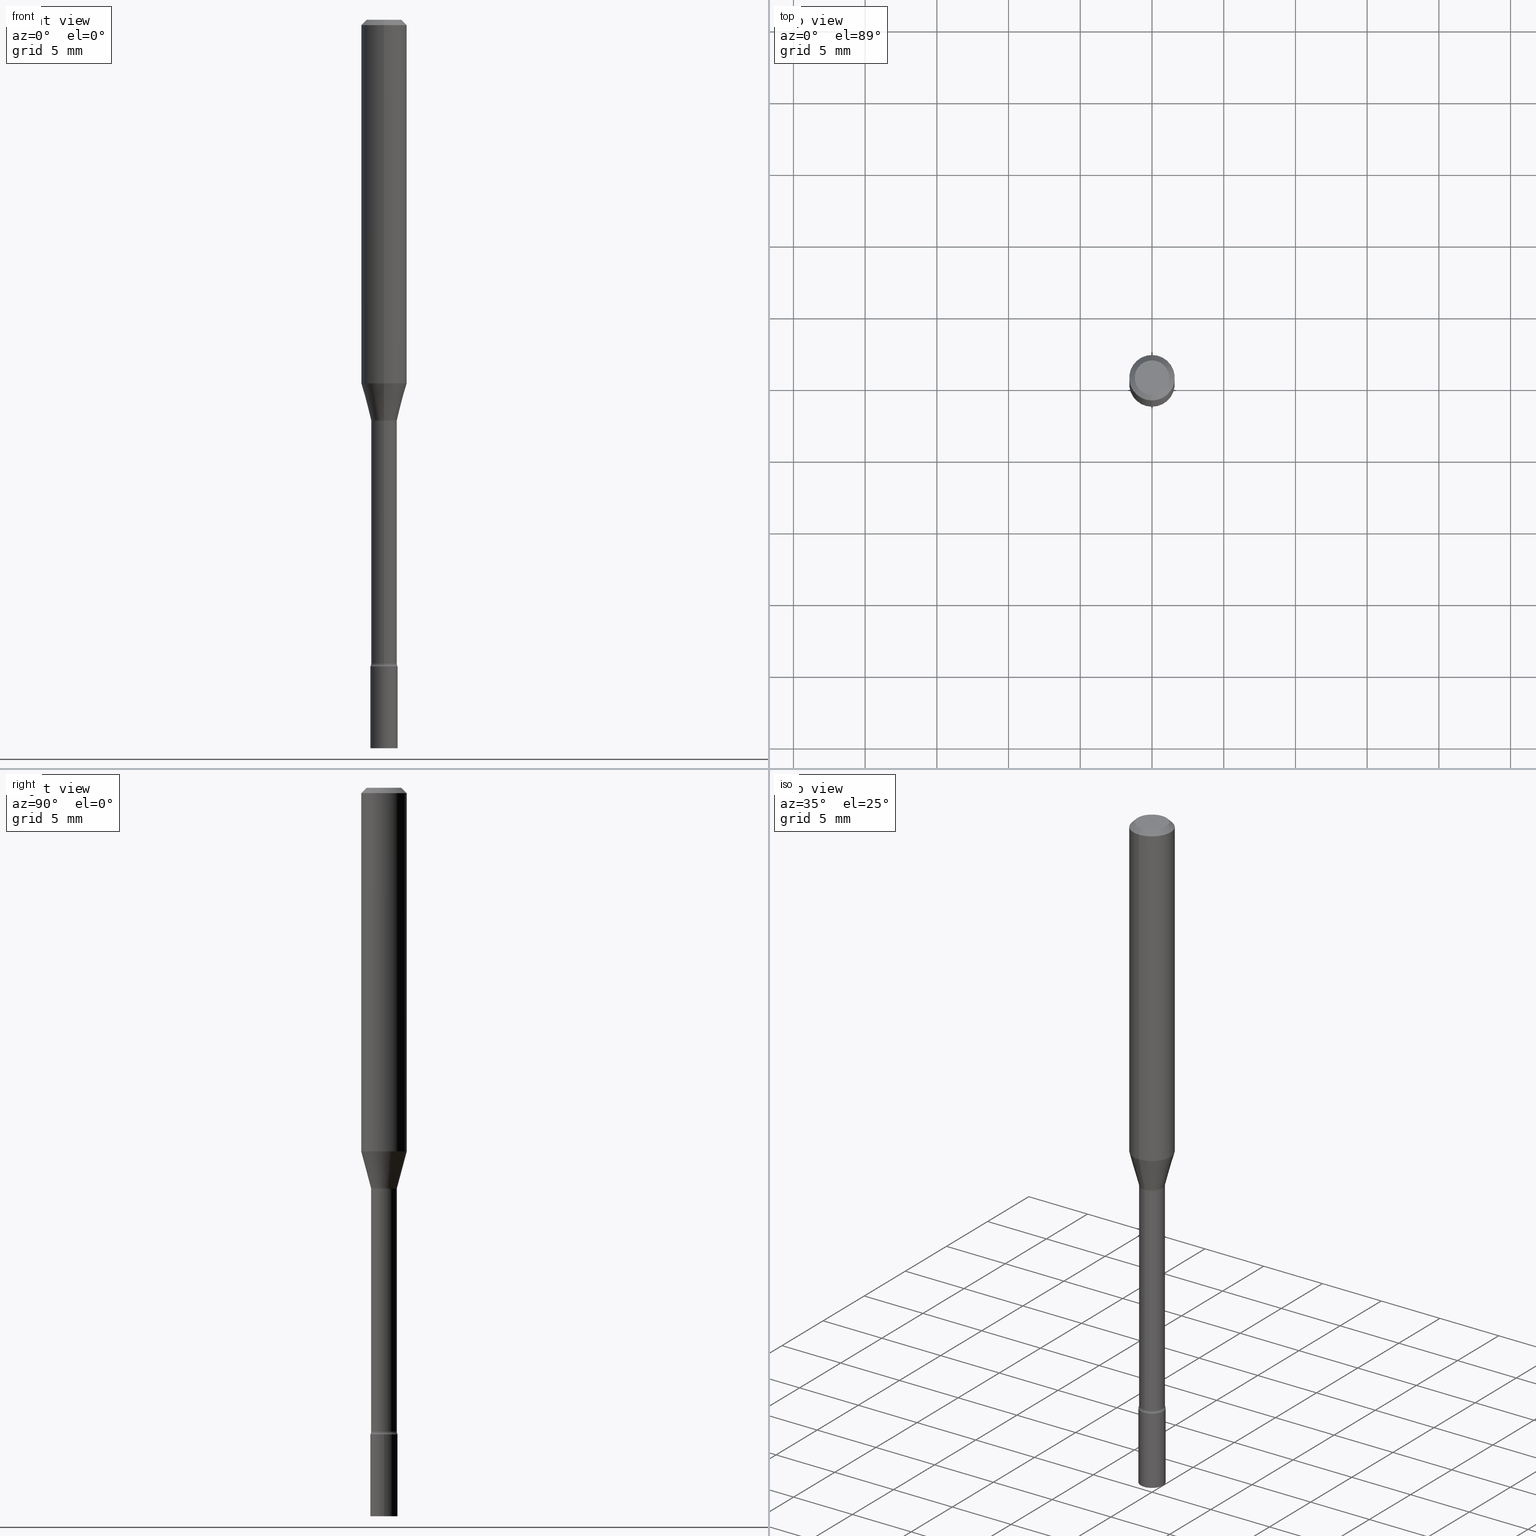
[diagram: canonical four-view strip — front | top / right | iso, engineering-drawing reading convention]
A machine part, canonical four-view strip (front | top / right | iso — engineering-drawing reading convention). The complete STEP part file that produces these views, byte-faithful:
ISO-10303-21;
HEADER;
FILE_DESCRIPTION (( 'STEP AP203' ),
    '1' );
FILE_NAME ('03443.STEP',
    '2024-03-08T21:22:56',
    ( '' ),
    ( '' ),
    'SwSTEP 2.0',
    'SolidWorks 2023',
    '' );
FILE_SCHEMA (( 'CONFIG_CONTROL_DESIGN' ));
ENDSEC;

DATA;
#1 = CARTESIAN_POINT ( 'NONE',  ( 0.000000000000000000, 0.000000000000000000, 0.000000000000000000 ) ) ;
#2 = VERTEX_POINT ( 'NONE', #124 ) ;
#3 = PERSON_AND_ORGANIZATION ( #152, #13 ) ;
#4 = CIRCLE ( 'NONE', #75, 0.03749999999999999861 ) ;
#5 = ORIENTED_EDGE ( 'NONE', *, *, #374, .F. ) ;
#6 = CARTESIAN_POINT ( 'NONE',  ( -0.03749999999999999861, -6.323717501156401251E-15, -2.000000000000000000 ) ) ;
#7 = EDGE_LOOP ( 'NONE', ( #282, #348, #294, #408 ) ) ;
#8 = EDGE_CURVE ( 'NONE', #363, #88, #218, .T. ) ;
#9 = DIRECTION ( 'NONE',  ( 1.000000000000000000, -6.982962677686268288E-15, 0.000000000000000000 ) ) ;
#10 = CARTESIAN_POINT ( 'NONE',  ( 2.694836430718442103E-29, -3.847536632100227789E-15, -1.101974787463810834 ) ) ;
#11 = LINE ( 'NONE', #97, #497 ) ;
#12 = CIRCLE ( 'NONE', #83, 0.06250000000000000000 ) ;
#13 = ORGANIZATION ( 'UNSPECIFIED', 'UNSPECIFIED', '' ) ;
#14 = PLANE ( 'NONE',  #217 ) ;
#15 = ADVANCED_FACE ( 'NONE', ( #134 ), #421, .T. ) ;
#16 = PERSON_AND_ORGANIZATION_ROLE ( 'classification_officer' ) ;
#17 = APPROVAL_ROLE ( '' ) ;
#18 = CARTESIAN_POINT ( 'NONE',  ( 3.570477247194940479E-16, 0.05024999999999391065, -1.767098259685361050 ) ) ;
#19 = CARTESIAN_POINT ( 'NONE',  ( -3.508938745537078699E-16, -0.05025000000000384714, -1.101974787463810834 ) ) ;
#20 = CARTESIAN_POINT ( 'NONE',  ( 4.321383671524591751E-29, -6.169790597593636121E-15, -1.767098259685360606 ) ) ;
#22 = AXIS2_PLACEMENT_3D ( 'NONE', #132, #173, #407 ) ;
#21 = APPROVAL_STATUS ( 'not_yet_approved' ) ;
#23 = CARTESIAN_POINT ( 'NONE',  ( 3.668191588467190461E-31, -5.237238649926811729E-17, -0.01500000000000003067 ) ) ;
#24 = EDGE_LOOP ( 'NONE', ( #394, #240, #112, #291 ) ) ;
#25 = DATE_AND_TIME ( #506, #462 ) ;
#26 = EDGE_CURVE ( 'NONE', #491, #438, #204, .T. ) ;
#27 = DIRECTION ( 'NONE',  ( -6.982962677686265922E-15, -1.000000000000000000, 3.483106191921935554E-15 ) ) ;
#28 = EDGE_CURVE ( 'NONE', #326, #428, #251, .T. ) ;
#29 = CARTESIAN_POINT ( 'NONE',  ( 4.890937612370273194E-29, -6.982962677686291165E-15, -2.000000000000000000 ) ) ;
#30 = ORIENTED_EDGE ( 'NONE', *, *, #281, .F. ) ;
#31 = PERSON_AND_ORGANIZATION ( #152, #13 ) ;
#32 = DIRECTION ( 'NONE',  ( -2.445461058978122069E-29, 3.491492433284533823E-15, 1.000000000000000000 ) ) ;
#33 = CIRCLE ( 'NONE', #304, 0.06250000000000000000 ) ;
#34 = CARTESIAN_POINT ( 'NONE',  ( 4.321369981448559219E-29, -6.169810202561705812E-15, -1.767098259685360606 ) ) ;
#35 = SECURITY_CLASSIFICATION ( '', '', #299 ) ;
#36 = DIRECTION ( 'NONE',  ( -6.982962677686265922E-15, -1.000000000000000000, 3.491492433284534218E-15 ) ) ;
#37 = ORIENTED_EDGE ( 'NONE', *, *, #26, .F. ) ;
#38 = FACE_OUTER_BOUND ( 'NONE', #24, .T. ) ;
#39 = EDGE_CURVE ( 'NONE', #51, #2, #411, .T. ) ;
#40 = DIRECTION ( 'NONE',  ( -2.445461058978122069E-29, 3.491492433284533823E-15, 1.000000000000000000 ) ) ;
#41 = DIRECTION ( 'NONE',  ( -6.982962677686265922E-15, -1.000000000000000000, 3.491492433284533823E-15 ) ) ;
#42 = VERTEX_POINT ( 'NONE', #162 ) ;
#43 = AXIS2_PLACEMENT_3D ( 'NONE', #308, #423, #473 ) ;
#44 = CIRCLE ( 'NONE', #437, 0.03576111260566397498 ) ;
#45 = ORIENTED_EDGE ( 'NONE', *, *, #272, .T. ) ;
#46 = CARTESIAN_POINT ( 'NONE',  ( -3.773273898774340269E-16, -0.04749999999999999362, 1.369325066391122786E-16 ) ) ;
#47 = ADVANCED_FACE ( 'NONE', ( #483 ), #283, .T. ) ;
#48 = VERTEX_POINT ( 'NONE', #404 ) ;
#49 = DIRECTION ( 'NONE',  ( -2.445461058978122069E-29, 3.491492433284533823E-15, 1.000000000000000000 ) ) ;
#50 = CC_DESIGN_PERSON_AND_ORGANIZATION_ASSIGNMENT ( #190, #344, ( #359 ) ) ;
#51 = VERTEX_POINT ( 'NONE', #207 ) ;
#52 = CARTESIAN_POINT ( 'NONE',  ( -4.287811248607203282E-16, -0.06250000000000005551, -0.01499999999999981209 ) ) ;
#53 = DIMENSIONAL_EXPONENTS ( 1.000000000000000000, 0.000000000000000000, 0.000000000000000000, 0.000000000000000000, 0.000000000000000000, 0.000000000000000000, 0.000000000000000000 ) ;
#54 = AXIS2_PLACEMENT_3D ( 'NONE', #336, #237, #502 ) ;
#55 = ORIENTED_EDGE ( 'NONE', *, *, #484, .F. ) ;
#56 = DIRECTION ( 'NONE',  ( -6.982962677686265133E-15, -1.000000000000000000, 3.819579138641765120E-15 ) ) ;
#57 = APPLICATION_PROTOCOL_DEFINITION ( 'international standard', 'config_control_design', 1994, #130 ) ;
#58 = CLOSED_SHELL ( 'NONE', ( #232, #368, #113, #47 ) ) ;
#59 = VECTOR ( 'NONE', #169, 39.37007874015748143 ) ;
#60 = EDGE_CURVE ( 'NONE', #48, #485, #195, .T. ) ;
#61 = COORDINATED_UNIVERSAL_TIME_OFFSET ( 5, 0, .BEHIND. ) ;
#62 = DIRECTION ( 'NONE',  ( 1.000000000000000000, -6.982962677686266711E-15, 4.876176775795935793E-29 ) ) ;
#63 = CYLINDRICAL_SURFACE ( 'NONE', #261, 0.03749999999999999861 ) ;
#64 = MANIFOLD_SOLID_BREP ( 'Body-Move/Copy2[2]', #259 ) ;
#65 = DIRECTION ( 'NONE',  ( 2.445461058978122069E-29, -3.491492433284533823E-15, -1.000000000000000000 ) ) ;
#67 = AXIS2_PLACEMENT_3D ( 'NONE', #384, #504, #271 ) ;
#66 = PERSON_AND_ORGANIZATION_ROLE ( 'creator' ) ;
#68 = CARTESIAN_POINT ( 'NONE',  ( 4.340693379686166357E-29, -6.197399069080048019E-15, -1.775000000000000133 ) ) ;
#69 = DIRECTION ( 'NONE',  ( 1.000000000000000000, -7.105427357601001070E-15, 4.926315644409803813E-29 ) ) ;
#70 = ORIENTED_EDGE ( 'NONE', *, *, #144, .T. ) ;
#71 = DIRECTION ( 'NONE',  ( -2.445468806185136597E-29, 3.491481338843145583E-15, 1.000000000000000000 ) ) ;
#72 = CARTESIAN_POINT ( 'NONE',  ( 2.540979878465616281E-16, 0.03576111260566013778, -1.098092501787273356 ) ) ;
#73 = DIRECTION ( 'NONE',  ( 6.982962677686265922E-15, 1.000000000000000000, -3.483106191921935554E-15 ) ) ;
#74 = EDGE_LOOP ( 'NONE', ( #414, #172, #360, #194 ) ) ;
#75 = AXIS2_PLACEMENT_3D ( 'NONE', #29, #234, #9 ) ;
#76 = DIRECTION ( 'NONE',  ( -2.445461058978122069E-29, 3.491492433284533823E-15, 1.000000000000000000 ) ) ;
#77 = AXIS2_PLACEMENT_3D ( 'NONE', #214, #369, #492 ) ;
#78 = DIRECTION ( 'NONE',  ( -2.445468806185136877E-29, 3.491481338843145188E-15, 1.000000000000000000 ) ) ;
#79 = DIRECTION ( 'NONE',  ( -2.445468806185136877E-29, 3.491481338843145188E-15, 1.000000000000000000 ) ) ;
#80 = ORIENTED_EDGE ( 'NONE', *, *, #317, .F. ) ;
#81 = ORIENTED_EDGE ( 'NONE', *, *, #153, .T. ) ;
#82 = EDGE_CURVE ( 'NONE', #197, #428, #323, .T. ) ;
#83 = AXIS2_PLACEMENT_3D ( 'NONE', #228, #193, #432 ) ;
#84 = CC_DESIGN_PERSON_AND_ORGANIZATION_ASSIGNMENT ( #416, #16, ( #35 ) ) ;
#85 = AXIS2_PLACEMENT_3D ( 'NONE', #10, #49, #253 ) ;
#86 = ORIENTED_EDGE ( 'NONE', *, *, #270, .T. ) ;
#87 = ADVANCED_FACE ( 'NONE', ( #350 ), #487, .T. ) ;
#88 = VERTEX_POINT ( 'NONE', #298 ) ;
#89 = CARTESIAN_POINT ( 'NONE',  ( 4.340707130978617347E-29, -6.197379376446583794E-15, -1.775000000000000133 ) ) ;
#90 = FACE_OUTER_BOUND ( 'NONE', #446, .T. ) ;
#91 = ORIENTED_EDGE ( 'NONE', *, *, #270, .F. ) ;
#92 = VECTOR ( 'NONE', #104, 39.37007874015748143 ) ;
#93 = APPROVAL ( #295, 'UNSPECIFIED' ) ;
#94 = DIRECTION ( 'NONE',  ( -2.445461058978122069E-29, 3.491492433284533823E-15, 1.000000000000000000 ) ) ;
#95 = UNCERTAINTY_MEASURE_WITH_UNIT (LENGTH_MEASURE( 1.000000000000000082E-05 ), #209, 'distance_accuracy_value', 'NONE');
#96 = APPROVAL_ROLE ( '' ) ;
#97 = CARTESIAN_POINT ( 'NONE',  ( -2.497185146378605472E-16, -0.03576111260566780525, -1.098092501787272912 ) ) ;
#98 = ORIENTED_EDGE ( 'NONE', *, *, #484, .T. ) ;
#99 = VECTOR ( 'NONE', #79, 39.37007874015748143 ) ;
#100 = CC_DESIGN_APPROVAL ( #93, ( #35 ) ) ;
#101 = DATE_AND_TIME ( #183, #509 ) ;
#102 = FACE_OUTER_BOUND ( 'NONE', #201, .T. ) ;
#103 = CARTESIAN_POINT ( 'NONE',  ( 7.070655451320730257E-46, -1.009508612538050995E-31, -2.891338394190306664E-17 ) ) ;
#104 = DIRECTION ( 'NONE',  ( -2.445461058978122069E-29, 3.491492433284533823E-15, 1.000000000000000000 ) ) ;
#105 = COORDINATED_UNIVERSAL_TIME_OFFSET ( 5, 0, .BEHIND. ) ;
#106 = FACE_OUTER_BOUND ( 'NONE', #168, .T. ) ;
#107 = CIRCLE ( 'NONE', #176, 0.03525000000000008682 ) ;
#108 = ORIENTED_EDGE ( 'NONE', *, *, #514, .F. ) ;
#110 = AXIS2_PLACEMENT_3D ( 'NONE', #415, #182, #468 ) ;
#109 = DATE_AND_TIME ( #263, #346 ) ;
#111 = FACE_OUTER_BOUND ( 'NONE', #131, .T. ) ;
#112 = ORIENTED_EDGE ( 'NONE', *, *, #391, .F. ) ;
#113 = ADVANCED_FACE ( 'NONE', ( #102 ), #63, .T. ) ;
#114 = LINE ( 'NONE', #72, #330 ) ;
#115 = DIRECTION ( 'NONE',  ( -2.445461058978122069E-29, 3.491492433284533823E-15, 1.000000000000000000 ) ) ;
#116 = ORIENTED_EDGE ( 'NONE', *, *, #213, .T. ) ;
#117 = EDGE_CURVE ( 'NONE', #485, #88, #33, .T. ) ;
#118 = DIRECTION ( 'NONE',  ( -2.445461058978122069E-29, 3.491492433284533823E-15, 1.000000000000000000 ) ) ;
#119 = AXIS2_PLACEMENT_3D ( 'NONE', #472, #380, #339 ) ;
#120 = EDGE_CURVE ( 'NONE', #51, #288, #343, .T. ) ;
#121 = ORIENTED_EDGE ( 'NONE', *, *, #82, .T. ) ;
#122 = CARTESIAN_POINT ( 'NONE',  ( 0.03749999999999999861, -2.618611004132350016E-16, 1.828566290923475922E-30 ) ) ;
#123 = ORIENTED_EDGE ( 'NONE', *, *, #39, .F. ) ;
#124 = CARTESIAN_POINT ( 'NONE',  ( -2.618611004131915157E-16, -0.03750000000000618811, -1.775000000000000133 ) ) ;
#125 = VECTOR ( 'NONE', #318, 39.37007874015748143 ) ;
#126 = CC_DESIGN_APPROVAL ( #146, ( #278 ) ) ;
#127 = DIRECTION ( 'NONE',  ( -1.000000000000000000, 6.982962677686265922E-15, -4.876176775795935793E-29 ) ) ;
#128 = ORIENTED_EDGE ( 'NONE', *, *, #153, .F. ) ;
#129 = DIRECTION ( 'NONE',  ( 2.445461058978121789E-29, -3.491492433284533823E-15, -1.000000000000000000 ) ) ;
#130 = APPLICATION_CONTEXT ( 'configuration controlled 3d designs of mechanical parts and assemblies' ) ;
#131 = EDGE_LOOP ( 'NONE', ( #158, #280, #258, #252 ) ) ;
#132 = CARTESIAN_POINT ( 'NONE',  ( 2.694836430718442103E-29, -3.847536632100227789E-15, -1.101974787463810834 ) ) ;
#133 = CARTESIAN_POINT ( 'NONE',  ( 4.364351673553919652E-16, 0.06249999999999995143, -0.01500000000000024751 ) ) ;
#134 = FACE_OUTER_BOUND ( 'NONE', #74, .T. ) ;
#135 = CARTESIAN_POINT ( 'NONE',  ( 3.316907271900976096E-16, 0.04749999999999999362, -1.803025825519668724E-16 ) ) ;
#136 = AXIS2_PLACEMENT_3D ( 'NONE', #68, #505, #475 ) ;
#137 =( GEOMETRIC_REPRESENTATION_CONTEXT ( 3 ) GLOBAL_UNCERTAINTY_ASSIGNED_CONTEXT ( ( #95 ) ) GLOBAL_UNIT_ASSIGNED_CONTEXT ( ( #209, #290, #449 ) ) REPRESENTATION_CONTEXT ( 'NONE', 'WORKASPACE' ) );
#138 = DIRECTION ( 'NONE',  ( 6.982962677686265922E-15, 1.000000000000000000, -3.491492433284533823E-15 ) ) ;
#139 = ADVANCED_FACE ( 'NONE', ( #378 ), #210, .F. ) ;
#140 = DIRECTION ( 'NONE',  ( -6.982962677686265133E-15, -1.000000000000000000, 3.819579138641765120E-15 ) ) ;
#141 = ORIENTED_EDGE ( 'NONE', *, *, #8, .T. ) ;
#142 = DIRECTION ( 'NONE',  ( 1.000000000000000000, -6.982962677686268288E-15, 0.000000000000000000 ) ) ;
#143 = COORDINATED_UNIVERSAL_TIME_OFFSET ( 5, 0, .BEHIND. ) ;
#144 = EDGE_CURVE ( 'NONE', #255, #363, #12, .T. ) ;
#145 = CARTESIAN_POINT ( 'NONE',  ( 0.000000000000000000, 0.000000000000000000, 0.000000000000000000 ) ) ;
#146 = APPROVAL ( #220, 'UNSPECIFIED' ) ;
#147 = CARTESIAN_POINT ( 'NONE',  ( 4.340693379686166357E-29, -6.197399069080048019E-15, -1.775000000000000133 ) ) ;
#148 = ORIENTED_EDGE ( 'NONE', *, *, #225, .T. ) ;
#149 = CARTESIAN_POINT ( 'NONE',  ( -2.461494343884138594E-16, -0.03525000000000384076, -1.101974787463810834 ) ) ;
#150 = CARTESIAN_POINT ( 'NONE',  ( 3.570477247194771860E-16, 0.05024999999999614497, -1.101974787463811056 ) ) ;
#151 = APPROVAL_DATE_TIME ( #109, #146 ) ;
#152 = PERSON ( 'UNSPECIFIED', 'UNSPECIFIED', 'UNSPECIFIED', ('UNSPECIFIED'), ('UNSPECIFIED'), ('UNSPECIFIED') ) ;
#153 = EDGE_CURVE ( 'NONE', #326, #448, #389, .T. ) ;
#154 = ORIENTED_EDGE ( 'NONE', *, *, #272, .F. ) ;
#155 = FACE_OUTER_BOUND ( 'NONE', #440, .T. ) ;
#156 = CC_DESIGN_DATE_AND_TIME_ASSIGNMENT ( #180, #377, ( #35 ) ) ;
#157 = CARTESIAN_POINT ( 'NONE',  ( 2.685342452276640404E-29, -3.833981661036747555E-15, -1.098092501787273134 ) ) ;
#158 = ORIENTED_EDGE ( 'NONE', *, *, #447, .F. ) ;
#159 = TOROIDAL_SURFACE ( 'NONE', #185, 0.05024999999999999606, 0.01499999999999999424 ) ;
#160 = DIRECTION ( 'NONE',  ( -6.982962677686266711E-15, -1.000000000000000000, 3.491492433284533823E-15 ) ) ;
#161 = CIRCLE ( 'NONE', #22, 0.03524999999999999661 ) ;
#162 = CARTESIAN_POINT ( 'NONE',  ( -2.497185146378605472E-16, -0.03576111260566780525, -1.098092501787272912 ) ) ;
#163 = ORIENTED_EDGE ( 'NONE', *, *, #60, .F. ) ;
#164 = DIRECTION ( 'NONE',  ( -6.982962677686266711E-15, -1.000000000000000000, 0.000000000000000000 ) ) ;
#165 = EDGE_LOOP ( 'NONE', ( #320, #154 ) ) ;
#166 = PRODUCT_DEFINITION_SHAPE ( 'NONE', 'NONE',  #359 ) ;
#167 = DIRECTION ( 'NONE',  ( -1.000000000000000000, 6.982962677686265922E-15, -4.883557194083112340E-29 ) ) ;
#168 = EDGE_LOOP ( 'NONE', ( #108, #121, #98, #5 ) ) ;
#170 = AXIS2_PLACEMENT_3D ( 'NONE', #23, #503, #73 ) ;
#169 = DIRECTION ( 'NONE',  ( -4.851104656540964275E-15, -0.7071067811865500152, -0.7071067811865450192 ) ) ;
#171 = EDGE_LOOP ( 'NONE', ( #513, #519 ) ) ;
#172 = ORIENTED_EDGE ( 'NONE', *, *, #28, .T. ) ;
#173 = DIRECTION ( 'NONE',  ( -2.445461058978122069E-29, 3.491492433284533823E-15, 1.000000000000000000 ) ) ;
#174 = FACE_OUTER_BOUND ( 'NONE', #7, .T. ) ;
#175 = ADVANCED_FACE ( 'NONE', ( #273 ), #277, .F. ) ;
#176 = AXIS2_PLACEMENT_3D ( 'NONE', #34, #118, #276 ) ;
#177 = CIRCLE ( 'NONE', #200, 0.01499999999999999424 ) ;
#178 = CARTESIAN_POINT ( 'NONE',  ( 0.03749999999999999861, -7.244823778099525378E-15, -2.000000000000000000 ) ) ;
#179 = CARTESIAN_POINT ( 'NONE',  ( 0.000000000000000000, 0.000000000000000000, 0.000000000000000000 ) ) ;
#180 = DATE_AND_TIME ( #500, #324 ) ;
#181 = DIRECTION ( 'NONE',  ( -1.807323732225328167E-15, -0.2588190451025179084, 0.9659258262890690894 ) ) ;
#182 = DIRECTION ( 'NONE',  ( -2.445461058978121789E-29, 3.491492433284533823E-15, 1.000000000000000000 ) ) ;
#183 = CALENDAR_DATE ( 2024, 8, 3 ) ;
#184 = DIRECTION ( 'NONE',  ( 7.105427357600997914E-15, 1.000000000000000000, 0.000000000000000000 ) ) ;
#185 = AXIS2_PLACEMENT_3D ( 'NONE', #267, #115, #36 ) ;
#186 = AXIS2_PLACEMENT_3D ( 'NONE', #260, #456, #457 ) ;
#187 = CARTESIAN_POINT ( 'NONE',  ( 3.668191588467190461E-31, -5.237238649926811729E-17, -0.01500000000000003067 ) ) ;
#188 = PERSON_AND_ORGANIZATION ( #152, #13 ) ;
#189 = ORIENTED_EDGE ( 'NONE', *, *, #334, .T. ) ;
#190 = PERSON_AND_ORGANIZATION ( #152, #13 ) ;
#191 = DIRECTION ( 'NONE',  ( -2.445461058978122069E-29, 3.491492433284533823E-15, 1.000000000000000000 ) ) ;
#192 = VECTOR ( 'NONE', #495, 39.37007874015748143 ) ;
#193 = DIRECTION ( 'NONE',  ( -2.445461058978122069E-29, 3.491492433284533823E-15, 1.000000000000000000 ) ) ;
#194 = ORIENTED_EDGE ( 'NONE', *, *, #120, .F. ) ;
#195 = LINE ( 'NONE', #133, #192 ) ;
#196 = ADVANCED_FACE ( 'NONE', ( #111 ), #436, .T. ) ;
#197 = VERTEX_POINT ( 'NONE', #470 ) ;
#198 = AXIS2_PLACEMENT_3D ( 'NONE', #425, #71, #142 ) ;
#199 = FACE_OUTER_BOUND ( 'NONE', #512, .T. ) ;
#200 = AXIS2_PLACEMENT_3D ( 'NONE', #19, #430, #164 ) ;
#201 = EDGE_LOOP ( 'NONE', ( #520, #148, #400, #362 ) ) ;
#202 = FACE_OUTER_BOUND ( 'NONE', #313, .T. ) ;
#203 = FACE_OUTER_BOUND ( 'NONE', #351, .T. ) ;
#204 = LINE ( 'NONE', #122, #99 ) ;
#205 = ORIENTED_EDGE ( 'NONE', *, *, #82, .F. ) ;
#206 = ADVANCED_FACE ( 'NONE', ( #106 ), #159, .F. ) ;
#207 = CARTESIAN_POINT ( 'NONE',  ( -2.461494343883982794E-16, -0.03525000000000625550, -1.767098259685360606 ) ) ;
#208 = EDGE_LOOP ( 'NONE', ( #128, #80, #403, #488 ) ) ;
#210 = TOROIDAL_SURFACE ( 'NONE', #296, 0.05024999999999999606, 0.01499999999999999424 ) ;
#209 =( CONVERSION_BASED_UNIT ( 'INCH', #329 ) LENGTH_UNIT ( ) NAMED_UNIT ( #53 ) );
#211 = PRODUCT_RELATED_PRODUCT_CATEGORY ( 'detail', '', ( #319 ) ) ;
#212 = CARTESIAN_POINT ( 'NONE',  ( 2.685342452276640404E-29, -3.833981661036747555E-15, -1.098092501787273134 ) ) ;
#213 = EDGE_CURVE ( 'NONE', #491, #459, #460, .T. ) ;
#214 = CARTESIAN_POINT ( 'NONE',  ( 0.000000000000000000, 0.000000000000000000, 0.000000000000000000 ) ) ;
#215 = CARTESIAN_POINT ( 'NONE',  ( 2.504663143554787774E-16, 0.03524999999999615247, -1.101974787463811056 ) ) ;
#216 = AXIS2_PLACEMENT_3D ( 'NONE', #265, #76, #27 ) ;
#217 = AXIS2_PLACEMENT_3D ( 'NONE', #135, #129, #138 ) ;
#218 = LINE ( 'NONE', #496, #479 ) ;
#219 = CARTESIAN_POINT ( 'NONE',  ( -0.03749999999999999861, -6.323717501156401251E-15, -1.775000000000000133 ) ) ;
#220 = APPROVAL_STATUS ( 'not_yet_approved' ) ;
#221 = DIRECTION ( 'NONE',  ( -2.445461058978122069E-29, 3.491492433284533823E-15, 1.000000000000000000 ) ) ;
#222 = DIRECTION ( 'NONE',  ( 1.000000000000000000, -7.105427357601001070E-15, 4.926315644409803813E-29 ) ) ;
#223 = AXIS2_PLACEMENT_3D ( 'NONE', #157, #431, #511 ) ;
#224 = CONICAL_SURFACE ( 'NONE', #331, 0.03576111260566397498, 0.2617993877991499629 ) ;
#225 = EDGE_CURVE ( 'NONE', #459, #491, #4, .T. ) ;
#226 = EDGE_CURVE ( 'NONE', #2, #448, #398, .T. ) ;
#227 = DATE_AND_TIME ( #422, #445 ) ;
#228 = CARTESIAN_POINT ( 'NONE',  ( 2.441307725804911996E-29, -3.485562536632148597E-15, -0.9983016154937482955 ) ) ;
#229 = DIRECTION ( 'NONE',  ( -2.445461058978122069E-29, 3.491492433284533823E-15, 1.000000000000000000 ) ) ;
#230 = MANIFOLD_SOLID_BREP ( 'Body-Move/Copy2[1]', #58 ) ;
#231 = APPROVAL_ROLE ( '' ) ;
#232 = ADVANCED_FACE ( 'NONE', ( #203 ), #493, .T. ) ;
#233 = EDGE_CURVE ( 'NONE', #42, #363, #11, .T. ) ;
#234 = DIRECTION ( 'NONE',  ( -2.445468806185136597E-29, 3.491481338843145583E-15, 1.000000000000000000 ) ) ;
#235 = CC_DESIGN_DATE_AND_TIME_ASSIGNMENT ( #101, #376, ( #359 ) ) ;
#236 = ORIENTED_EDGE ( 'NONE', *, *, #249, .T. ) ;
#237 = DIRECTION ( 'NONE',  ( -2.445461058978122069E-29, 3.491492433284533823E-15, 1.000000000000000000 ) ) ;
#238 = APPROVAL ( #21, 'UNSPECIFIED' ) ;
#239 = AXIS2_PLACEMENT_3D ( 'NONE', #402, #321, #127 ) ;
#240 = ORIENTED_EDGE ( 'NONE', *, *, #303, .T. ) ;
#241 = CARTESIAN_POINT ( 'NONE',  ( 2.584599201327800595E-16, 0.03524999999999392508, -1.767098259685360606 ) ) ;
#242 = DIRECTION ( 'NONE',  ( -2.445461058978122069E-29, 3.491492433284533823E-15, 1.000000000000000000 ) ) ;
#243 = ADVANCED_FACE ( 'NONE', ( #174 ), #454, .T. ) ;
#244 = ORIENTED_EDGE ( 'NONE', *, *, #281, .T. ) ;
#245 = ORIENTED_EDGE ( 'NONE', *, *, #489, .T. ) ;
#246 = ORIENTED_EDGE ( 'NONE', *, *, #28, .F. ) ;
#247 = CC_DESIGN_PERSON_AND_ORGANIZATION_ASSIGNMENT ( #3, #325, ( #319 ) ) ;
#248 = CIRCLE ( 'NONE', #443, 0.04749999999999999362 ) ;
#249 = EDGE_CURVE ( 'NONE', #326, #51, #268, .T. ) ;
#250 = DIRECTION ( 'NONE',  ( -2.445461058978122069E-29, 3.491492433284533823E-15, 1.000000000000000000 ) ) ;
#251 = LINE ( 'NONE', #444, #125 ) ;
#252 = ORIENTED_EDGE ( 'NONE', *, *, #117, .T. ) ;
#253 = DIRECTION ( 'NONE',  ( -6.982962677686265133E-15, -1.000000000000000000, 3.874961693140799059E-15 ) ) ;
#254 = ORIENTED_EDGE ( 'NONE', *, *, #450, .F. ) ;
#255 = VERTEX_POINT ( 'NONE', #465 ) ;
#256 = CARTESIAN_POINT ( 'NONE',  ( 7.070655451320730257E-46, -1.009508612538050995E-31, -2.891338394190306664E-17 ) ) ;
#257 = MECHANICAL_CONTEXT ( 'NONE', #130, 'mechanical' ) ;
#258 = ORIENTED_EDGE ( 'NONE', *, *, #60, .T. ) ;
#259 = CLOSED_SHELL ( 'NONE', ( #206, #15, #357, #87, #420, #332, #243, #397, #196, #466, #371, #175, #266, #139 ) ) ;
#260 = CARTESIAN_POINT ( 'NONE',  ( 4.340707130978617347E-29, -6.197379376446583794E-15, -1.775000000000000133 ) ) ;
#261 = AXIS2_PLACEMENT_3D ( 'NONE', #145, #464, #386 ) ;
#262 = DIRECTION ( 'NONE',  ( -2.445461058978122069E-29, 3.491492433284533823E-15, 1.000000000000000000 ) ) ;
#263 = CALENDAR_DATE ( 2024, 8, 3 ) ;
#264 = CARTESIAN_POINT ( 'NONE',  ( 3.668191588467190461E-31, -5.237238649926811729E-17, -0.01500000000000003067 ) ) ;
#265 = CARTESIAN_POINT ( 'NONE',  ( 3.668191588467190461E-31, -5.237238649926811729E-17, -0.01500000000000003067 ) ) ;
#266 = ADVANCED_FACE ( 'NONE', ( #508 ), #342, .T. ) ;
#267 = CARTESIAN_POINT ( 'NONE',  ( 2.694844967945245181E-29, -3.847524406305537036E-15, -1.101974787463810834 ) ) ;
#268 = CIRCLE ( 'NONE', #54, 0.03525000000000008682 ) ;
#269 = CIRCLE ( 'NONE', #379, 0.03576111260566397498 ) ;
#270 = EDGE_CURVE ( 'NONE', #396, #48, #248, .T. ) ;
#271 = DIRECTION ( 'NONE',  ( 1.000000000000000000, -6.982962677686265922E-15, 4.876176775795935793E-29 ) ) ;
#272 = EDGE_CURVE ( 'NONE', #448, #2, #354, .T. ) ;
#273 = FACE_OUTER_BOUND ( 'NONE', #208, .T. ) ;
#274 = ORIENTED_EDGE ( 'NONE', *, *, #427, .T. ) ;
#275 = DIRECTION ( 'NONE',  ( 6.982962677686265922E-15, 1.000000000000000000, -3.483106191921935554E-15 ) ) ;
#276 = DIRECTION ( 'NONE',  ( -6.982962677686266711E-15, -1.000000000000000000, 0.000000000000000000 ) ) ;
#277 = TOROIDAL_SURFACE ( 'NONE', #119, 0.05025000000000007933, 0.01499999999999999077 ) ;
#278 = PRODUCT_DEFINITION_FORMATION_WITH_SPECIFIED_SOURCE ( 'ANY', '', #319, .NOT_KNOWN. ) ;
#279 = LINE ( 'NONE', #439, #305 ) ;
#280 = ORIENTED_EDGE ( 'NONE', *, *, #334, .F. ) ;
#281 = EDGE_CURVE ( 'NONE', #88, #485, #424, .T. ) ;
#282 = ORIENTED_EDGE ( 'NONE', *, *, #303, .F. ) ;
#283 = PLANE ( 'NONE',  #239 ) ;
#284 = ORIENTED_EDGE ( 'NONE', *, *, #391, .T. ) ;
#285 = CIRCLE ( 'NONE', #399, 0.04749999999999999362 ) ;
#286 = APPROVAL_PERSON_ORGANIZATION ( #188, #146, #96 ) ;
#287 = ORIENTED_EDGE ( 'NONE', *, *, #447, .T. ) ;
#288 = VERTEX_POINT ( 'NONE', #149 ) ;
#289 = DIRECTION ( 'NONE',  ( -2.445461058978122069E-29, 3.491492433284533823E-15, 1.000000000000000000 ) ) ;
#290 =( NAMED_UNIT ( * ) PLANE_ANGLE_UNIT ( ) SI_UNIT ( $, .RADIAN. ) );
#291 = ORIENTED_EDGE ( 'NONE', *, *, #233, .F. ) ;
#292 = CARTESIAN_POINT ( 'NONE',  ( 0.000000000000000000, 0.000000000000000000, 0.000000000000000000 ) ) ;
#293 = CARTESIAN_POINT ( 'NONE',  ( 0.03749999999999999861, -6.459240476859818795E-15, -1.775000000000000133 ) ) ;
#294 = ORIENTED_EDGE ( 'NONE', *, *, #233, .T. ) ;
#295 = APPROVAL_STATUS ( 'not_yet_approved' ) ;
#296 = AXIS2_PLACEMENT_3D ( 'NONE', #340, #221, #302 ) ;
#297 = VECTOR ( 'NONE', #242, 39.37007874015748143 ) ;
#298 = CARTESIAN_POINT ( 'NONE',  ( -4.364351673553912750E-16, -0.06250000000000005551, -0.01499999999999981209 ) ) ;
#299 = SECURITY_CLASSIFICATION_LEVEL ( 'unclassified' ) ;
#300 = PLANE ( 'NONE',  #67 ) ;
#301 = PERSON_AND_ORGANIZATION ( #152, #13 ) ;
#302 = DIRECTION ( 'NONE',  ( -6.982962677686265922E-15, -1.000000000000000000, 3.491492433284534218E-15 ) ) ;
#303 = EDGE_CURVE ( 'NONE', #197, #255, #114, .T. ) ;
#304 = AXIS2_PLACEMENT_3D ( 'NONE', #264, #32, #474 ) ;
#305 = VECTOR ( 'NONE', #78, 39.37007874015748143 ) ;
#306 = CC_DESIGN_APPROVAL ( #238, ( #359 ) ) ;
#307 = PERSON_AND_ORGANIZATION_ROLE ( 'design_supplier' ) ;
#308 = CARTESIAN_POINT ( 'NONE',  ( 0.000000000000000000, 0.000000000000000000, 0.000000000000000000 ) ) ;
#309 = PLANE ( 'NONE',  #110 ) ;
#310 = DIRECTION ( 'NONE',  ( -6.982962677686266711E-15, -1.000000000000000000, 3.491492433284533823E-15 ) ) ;
#311 = AXIS2_PLACEMENT_3D ( 'NONE', #187, #65, #275 ) ;
#312 = APPROVAL_PERSON_ORGANIZATION ( #301, #238, #231 ) ;
#313 = EDGE_LOOP ( 'NONE', ( #481, #70, #141, #322 ) ) ;
#314 = EDGE_LOOP ( 'NONE', ( #205, #254, #482, #274 ) ) ;
#315 = CARTESIAN_POINT ( 'NONE',  ( -4.364351673553671654E-16, -0.06250000000000346945, -0.9983016154937480735 ) ) ;
#316 = CARTESIAN_POINT ( 'NONE',  ( 2.441307725804911996E-29, -3.485562536632148597E-15, -0.9983016154937482955 ) ) ;
#317 = EDGE_CURVE ( 'NONE', #51, #326, #107, .T. ) ;
#318 = DIRECTION ( 'NONE',  ( -2.445461058978122069E-29, 3.491492433284533823E-15, 1.000000000000000000 ) ) ;
#319 = PRODUCT ( '03443', '03443', '', ( #257 ) ) ;
#320 = ORIENTED_EDGE ( 'NONE', *, *, #226, .F. ) ;
#321 = DIRECTION ( 'NONE',  ( 2.438088387897960049E-29, -3.491481338843145188E-15, -1.000000000000000000 ) ) ;
#322 = ORIENTED_EDGE ( 'NONE', *, *, #117, .F. ) ;
#323 = CIRCLE ( 'NONE', #516, 0.01499999999999999424 ) ;
#324 = LOCAL_TIME ( 16, 22, 56.00000000000000000, #61 ) ;
#325 = PERSON_AND_ORGANIZATION_ROLE ( 'design_owner' ) ;
#326 = VERTEX_POINT ( 'NONE', #241 ) ;
#327 = ORIENTED_EDGE ( 'NONE', *, *, #8, .F. ) ;
#328 = CARTESIAN_POINT ( 'NONE',  ( 4.440892098500871695E-16, 0.06249999999999995837, -0.01500000000000024751 ) ) ;
#330 = VECTOR ( 'NONE', #387, 39.37007874015748854 ) ;
#329 = LENGTH_MEASURE_WITH_UNIT ( LENGTH_MEASURE( 0.02539999999999999897 ), #452 );
#331 = AXIS2_PLACEMENT_3D ( 'NONE', #419, #40, #515 ) ;
#332 = ADVANCED_FACE ( 'NONE', ( #38 ), #224, .T. ) ;
#333 = CARTESIAN_POINT ( 'NONE',  ( 2.664535259100808486E-16, 0.03749999999999379524, -1.775000000000000133 ) ) ;
#334 = EDGE_CURVE ( 'NONE', #48, #396, #285, .T. ) ;
#335 = APPROVAL_DATE_TIME ( #25, #93 ) ;
#336 = CARTESIAN_POINT ( 'NONE',  ( 4.321369981448559219E-29, -6.169810202561705812E-15, -1.767098259685360606 ) ) ;
#337 = AXIS2_PLACEMENT_3D ( 'NONE', #518, #167, #395 ) ;
#338 = CIRCLE ( 'NONE', #186, 0.03749999999999999861 ) ;
#339 = DIRECTION ( 'NONE',  ( -6.982962677686265922E-15, -1.000000000000000000, 3.491492433284533823E-15 ) ) ;
#340 = CARTESIAN_POINT ( 'NONE',  ( 2.694844967945245181E-29, -3.847524406305537036E-15, -1.101974787463810834 ) ) ;
#341 = PERSON_AND_ORGANIZATION ( #152, #13 ) ;
#342 = CYLINDRICAL_SURFACE ( 'NONE', #43, 0.03525000000000003825 ) ;
#343 = LINE ( 'NONE', #418, #92 ) ;
#344 = PERSON_AND_ORGANIZATION_ROLE ( 'creator' ) ;
#345 = AXIS2_PLACEMENT_3D ( 'NONE', #382, #191, #393 ) ;
#346 = LOCAL_TIME ( 16, 22, 56.00000000000000000, #385 ) ;
#347 = EDGE_CURVE ( 'NONE', #438, #367, #517, .T. ) ;
#348 = ORIENTED_EDGE ( 'NONE', *, *, #514, .T. ) ;
#349 = DIRECTION ( 'NONE',  ( -6.982962677686265922E-15, -1.000000000000000000, 3.491492433284533823E-15 ) ) ;
#350 = FACE_OUTER_BOUND ( 'NONE', #383, .T. ) ;
#351 = EDGE_LOOP ( 'NONE', ( #116, #442, #392, #37 ) ) ;
#352 = EDGE_LOOP ( 'NONE', ( #284, #358, #30, #327 ) ) ;
#353 = APPLICATION_CONTEXT ( 'configuration controlled 3d designs of mechanical parts and assemblies' ) ;
#354 = CIRCLE ( 'NONE', #136, 0.03749999999999999861 ) ;
#355 = AXIS2_PLACEMENT_3D ( 'NONE', #316, #250, #401 ) ;
#356 = ORIENTED_EDGE ( 'NONE', *, *, #249, .F. ) ;
#357 = ADVANCED_FACE ( 'NONE', ( #199 ), #365, .F. ) ;
#358 = ORIENTED_EDGE ( 'NONE', *, *, #410, .T. ) ;
#359 = PRODUCT_DEFINITION ( 'UNKNOWN', '', #278, #461 ) ;
#360 = ORIENTED_EDGE ( 'NONE', *, *, #427, .F. ) ;
#361 = DIRECTION ( 'NONE',  ( 1.000000000000000000, 0.000000000000000000, 0.000000000000000000 ) ) ;
#362 = ORIENTED_EDGE ( 'NONE', *, *, #489, .F. ) ;
#363 = VERTEX_POINT ( 'NONE', #315 ) ;
#364 = AXIS2_PLACEMENT_3D ( 'NONE', #147, #426, #441 ) ;
#365 = TOROIDAL_SURFACE ( 'NONE', #501, 0.05025000000000007933, 0.01499999999999999077 ) ;
#366 = LINE ( 'NONE', #52, #59 ) ;
#367 = VERTEX_POINT ( 'NONE', #219 ) ;
#368 = ADVANCED_FACE ( 'NONE', ( #155 ), #300, .T. ) ;
#369 = DIRECTION ( 'NONE',  ( -2.445461058978122069E-29, 3.491492433284533823E-15, 1.000000000000000000 ) ) ;
#370 = FACE_OUTER_BOUND ( 'NONE', #352, .T. ) ;
#371 = ADVANCED_FACE ( 'NONE', ( #510 ), #309, .F. ) ;
#372 = AXIS2_PLACEMENT_3D ( 'NONE', #179, #453, #62 ) ;
#373 = AXIS2_PLACEMENT_3D ( 'NONE', #292, #458, #361 ) ;
#374 = EDGE_CURVE ( 'NONE', #42, #288, #177, .T. ) ;
#375 = CC_DESIGN_PERSON_AND_ORGANIZATION_ASSIGNMENT ( #429, #66, ( #278 ) ) ;
#376 = DATE_TIME_ROLE ( 'creation_date' ) ;
#377 = DATE_TIME_ROLE ( 'classification_date' ) ;
#378 = FACE_OUTER_BOUND ( 'NONE', #314, .T. ) ;
#379 = AXIS2_PLACEMENT_3D ( 'NONE', #212, #409, #140 ) ;
#380 = DIRECTION ( 'NONE',  ( -2.445461058978122069E-29, 3.491492433284533823E-15, 1.000000000000000000 ) ) ;
#381 = DIRECTION ( 'NONE',  ( 7.105427357601001859E-15, 1.000000000000000000, 0.000000000000000000 ) ) ;
#382 = CARTESIAN_POINT ( 'NONE',  ( 0.000000000000000000, 0.000000000000000000, 0.000000000000000000 ) ) ;
#383 = EDGE_LOOP ( 'NONE', ( #91, #287, #244, #163 ) ) ;
#384 = CARTESIAN_POINT ( 'NONE',  ( 4.340707130978617347E-29, -6.197379376446583794E-15, -1.775000000000000133 ) ) ;
#385 = COORDINATED_UNIVERSAL_TIME_OFFSET ( 5, 0, .BEHIND. ) ;
#386 = DIRECTION ( 'NONE',  ( 1.000000000000000000, -6.982962677686266711E-15, 4.876176775795935793E-29 ) ) ;
#387 = DIRECTION ( 'NONE',  ( 1.839019923739597949E-15, 0.2588190451025246253, 0.9659258262890670910 ) ) ;
#388 = LINE ( 'NONE', #476, #297 ) ;
#389 = CIRCLE ( 'NONE', #507, 0.01499999999999999424 ) ;
#390 = CIRCLE ( 'NONE', #355, 0.06250000000000000000 ) ;
#391 = EDGE_CURVE ( 'NONE', #363, #255, #390, .T. ) ;
#392 = ORIENTED_EDGE ( 'NONE', *, *, #347, .F. ) ;
#393 = DIRECTION ( 'NONE',  ( -6.982962677686266711E-15, -1.000000000000000000, 3.491492433284533823E-15 ) ) ;
#394 = ORIENTED_EDGE ( 'NONE', *, *, #450, .T. ) ;
#395 = DIRECTION ( 'NONE',  ( -6.982962677686262766E-15, -1.000000000000000000, 0.000000000000000000 ) ) ;
#396 = VERTEX_POINT ( 'NONE', #46 ) ;
#397 = ADVANCED_FACE ( 'NONE', ( #202 ), #478, .T. ) ;
#398 = CIRCLE ( 'NONE', #364, 0.03749999999999999861 ) ;
#399 = AXIS2_PLACEMENT_3D ( 'NONE', #256, #289, #160 ) ;
#400 = ORIENTED_EDGE ( 'NONE', *, *, #26, .T. ) ;
#401 = DIRECTION ( 'NONE',  ( -6.982962677686265922E-15, -1.000000000000000000, 4.370956789862821150E-15 ) ) ;
#402 = CARTESIAN_POINT ( 'NONE',  ( 2.618611004132838617E-16, 0.03749999999999301115, -2.000000000000000000 ) ) ;
#403 = ORIENTED_EDGE ( 'NONE', *, *, #39, .T. ) ;
#404 = CARTESIAN_POINT ( 'NONE',  ( 3.840629472727447874E-16, 0.04749999999999999362, -1.947592745229184119E-16 ) ) ;
#405 = ORIENTED_EDGE ( 'NONE', *, *, #347, .T. ) ;
#406 = DIRECTION ( 'NONE',  ( -2.445468806185136597E-29, 3.491481338843145583E-15, 1.000000000000000000 ) ) ;
#407 = DIRECTION ( 'NONE',  ( -6.982962677686265133E-15, -1.000000000000000000, 3.874961693140799059E-15 ) ) ;
#408 = ORIENTED_EDGE ( 'NONE', *, *, #144, .F. ) ;
#409 = DIRECTION ( 'NONE',  ( -2.445461058978122069E-29, 3.491492433284533823E-15, 1.000000000000000000 ) ) ;
#410 = EDGE_CURVE ( 'NONE', #255, #485, #388, .T. ) ;
#411 = CIRCLE ( 'NONE', #337, 0.01499999999999999424 ) ;
#413 = AXIS2_PLACEMENT_3D ( 'NONE', #89, #406, #477 ) ;
#412 = SHAPE_DEFINITION_REPRESENTATION ( #166, #433 ) ;
#414 = ORIENTED_EDGE ( 'NONE', *, *, #317, .T. ) ;
#415 = CARTESIAN_POINT ( 'NONE',  ( 2.618611004132783890E-16, 0.03749999999999380218, -1.775000000000000133 ) ) ;
#416 = PERSON_AND_ORGANIZATION ( #152, #13 ) ;
#417 = EDGE_CURVE ( 'NONE', #459, #367, #279, .T. ) ;
#418 = CARTESIAN_POINT ( 'NONE',  ( -2.461494343884411737E-16, -0.03525000000000003825, 1.230751082732799542E-16 ) ) ;
#419 = CARTESIAN_POINT ( 'NONE',  ( 2.685342452276640404E-29, -3.833981661036747555E-15, -1.098092501787273134 ) ) ;
#420 = ADVANCED_FACE ( 'NONE', ( #370 ), #490, .T. ) ;
#421 = CYLINDRICAL_SURFACE ( 'NONE', #345, 0.03525000000000003825 ) ;
#422 = CALENDAR_DATE ( 2024, 8, 3 ) ;
#423 = DIRECTION ( 'NONE',  ( -2.445461058978122069E-29, 3.491492433284533823E-15, 1.000000000000000000 ) ) ;
#424 = CIRCLE ( 'NONE', #216, 0.06250000000000000000 ) ;
#425 = CARTESIAN_POINT ( 'NONE',  ( 4.890937612370273194E-29, -6.982962677686291165E-15, -2.000000000000000000 ) ) ;
#426 = DIRECTION ( 'NONE',  ( -2.445461058978122069E-29, 3.491492433284533823E-15, 1.000000000000000000 ) ) ;
#427 = EDGE_CURVE ( 'NONE', #288, #428, #498, .T. ) ;
#428 = VERTEX_POINT ( 'NONE', #215 ) ;
#429 = PERSON_AND_ORGANIZATION ( #152, #13 ) ;
#430 = DIRECTION ( 'NONE',  ( -1.000000000000000000, 6.982962677686265922E-15, -4.883557194083112340E-29 ) ) ;
#431 = DIRECTION ( 'NONE',  ( -2.445461058978122069E-29, 3.491492433284533823E-15, 1.000000000000000000 ) ) ;
#432 = DIRECTION ( 'NONE',  ( -6.982962677686265922E-15, -1.000000000000000000, 4.370956789862821150E-15 ) ) ;
#433 = ADVANCED_BREP_SHAPE_REPRESENTATION ( '03443', ( #230, #64, #373 ), #137 ) ;
#434 = EDGE_LOOP ( 'NONE', ( #246, #236, #451, #55 ) ) ;
#435 = DIRECTION ( 'NONE',  ( -2.445461058978122069E-29, 3.491492433284533823E-15, 1.000000000000000000 ) ) ;
#436 = CONICAL_SURFACE ( 'NONE', #170, 0.06250000000000000000, 0.7853981633974483900 ) ;
#437 = AXIS2_PLACEMENT_3D ( 'NONE', #499, #94, #56 ) ;
#438 = VERTEX_POINT ( 'NONE', #293 ) ;
#439 = CARTESIAN_POINT ( 'NONE',  ( -0.03749999999999999861, 2.664535259100375598E-16, -1.844600658845589458E-30 ) ) ;
#440 = EDGE_LOOP ( 'NONE', ( #405, #245 ) ) ;
#441 = DIRECTION ( 'NONE',  ( -6.982962677686265922E-15, -1.000000000000000000, 0.000000000000000000 ) ) ;
#442 = ORIENTED_EDGE ( 'NONE', *, *, #417, .T. ) ;
#443 = AXIS2_PLACEMENT_3D ( 'NONE', #103, #435, #310 ) ;
#444 = CARTESIAN_POINT ( 'NONE',  ( 2.504663143554355873E-16, 0.03525000000000003825, -1.230751082732799542E-16 ) ) ;
#445 = LOCAL_TIME ( 16, 22, 56.00000000000000000, #469 ) ;
#446 = EDGE_LOOP ( 'NONE', ( #189, #86 ) ) ;
#447 = EDGE_CURVE ( 'NONE', #396, #88, #366, .T. ) ;
#448 = VERTEX_POINT ( 'NONE', #333 ) ;
#449 =( NAMED_UNIT ( * ) SI_UNIT ( $, .STERADIAN. ) SOLID_ANGLE_UNIT ( ) );
#450 = EDGE_CURVE ( 'NONE', #42, #197, #269, .T. ) ;
#451 = ORIENTED_EDGE ( 'NONE', *, *, #120, .T. ) ;
#452 =( LENGTH_UNIT ( ) NAMED_UNIT ( * ) SI_UNIT ( $, .METRE. ) );
#453 = DIRECTION ( 'NONE',  ( -2.445468806185136597E-29, 3.491481338843145583E-15, 1.000000000000000000 ) ) ;
#454 = CONICAL_SURFACE ( 'NONE', #223, 0.03576111260566397498, 0.2617993877991499629 ) ;
#455 = APPROVAL_PERSON_ORGANIZATION ( #341, #93, #17 ) ;
#456 = DIRECTION ( 'NONE',  ( -2.445468806185136597E-29, 3.491481338843145583E-15, 1.000000000000000000 ) ) ;
#457 = DIRECTION ( 'NONE',  ( 1.000000000000000000, -6.982962677686268288E-15, 0.000000000000000000 ) ) ;
#458 = DIRECTION ( 'NONE',  ( 0.000000000000000000, 0.000000000000000000, 1.000000000000000000 ) ) ;
#459 = VERTEX_POINT ( 'NONE', #6 ) ;
#460 = CIRCLE ( 'NONE', #198, 0.03749999999999999861 ) ;
#461 = DESIGN_CONTEXT ( 'detailed design', #353, 'design' ) ;
#463 = APPROVAL_DATE_TIME ( #227, #238 ) ;
#462 = LOCAL_TIME ( 16, 22, 56.00000000000000000, #105 ) ;
#464 = DIRECTION ( 'NONE',  ( -2.445468806185136597E-29, 3.491481338843145583E-15, 1.000000000000000000 ) ) ;
#465 = CARTESIAN_POINT ( 'NONE',  ( 4.440892098500869722E-16, 0.06249999999999652361, -0.9983016154937485176 ) ) ;
#466 = ADVANCED_FACE ( 'NONE', ( #90 ), #14, .F. ) ;
#467 = CC_DESIGN_PERSON_AND_ORGANIZATION_ASSIGNMENT ( #31, #307, ( #278 ) ) ;
#468 = DIRECTION ( 'NONE',  ( -6.982962677686265922E-15, -1.000000000000000000, 3.491492433284533823E-15 ) ) ;
#469 = COORDINATED_UNIVERSAL_TIME_OFFSET ( 5, 0, .BEHIND. ) ;
#470 = CARTESIAN_POINT ( 'NONE',  ( 3.490935988483243741E-16, 0.03576111260566013778, -1.098092501787273356 ) ) ;
#471 = AXIS2_PLACEMENT_3D ( 'NONE', #1, #486, #41 ) ;
#472 = CARTESIAN_POINT ( 'NONE',  ( 4.321383671524591751E-29, -6.169790597593636121E-15, -1.767098259685360606 ) ) ;
#473 = DIRECTION ( 'NONE',  ( -6.982962677686266711E-15, -1.000000000000000000, 3.491492433284533823E-15 ) ) ;
#474 = DIRECTION ( 'NONE',  ( -6.982962677686265922E-15, -1.000000000000000000, 3.483106191921935554E-15 ) ) ;
#475 = DIRECTION ( 'NONE',  ( -6.982962677686265922E-15, -1.000000000000000000, 0.000000000000000000 ) ) ;
#476 = CARTESIAN_POINT ( 'NONE',  ( 4.440892098500625669E-16, 0.06250000000000000000, -2.182182770802833639E-16 ) ) ;
#477 = DIRECTION ( 'NONE',  ( 1.000000000000000000, -6.982962677686268288E-15, 0.000000000000000000 ) ) ;
#478 = CYLINDRICAL_SURFACE ( 'NONE', #471, 0.06250000000000000000 ) ;
#479 = VECTOR ( 'NONE', #262, 39.37007874015748143 ) ;
#480 = CC_DESIGN_SECURITY_CLASSIFICATION ( #35, ( #278 ) ) ;
#481 = ORIENTED_EDGE ( 'NONE', *, *, #410, .F. ) ;
#482 = ORIENTED_EDGE ( 'NONE', *, *, #374, .T. ) ;
#483 = FACE_OUTER_BOUND ( 'NONE', #171, .T. ) ;
#484 = EDGE_CURVE ( 'NONE', #428, #288, #161, .T. ) ;
#485 = VERTEX_POINT ( 'NONE', #328 ) ;
#486 = DIRECTION ( 'NONE',  ( -2.445461058978122069E-29, 3.491492433284533823E-15, 1.000000000000000000 ) ) ;
#487 = CONICAL_SURFACE ( 'NONE', #311, 0.06250000000000000000, 0.7853981633974483900 ) ;
#488 = ORIENTED_EDGE ( 'NONE', *, *, #226, .T. ) ;
#489 = EDGE_CURVE ( 'NONE', #367, #438, #338, .T. ) ;
#490 = CYLINDRICAL_SURFACE ( 'NONE', #77, 0.06250000000000000000 ) ;
#491 = VERTEX_POINT ( 'NONE', #178 ) ;
#492 = DIRECTION ( 'NONE',  ( -6.982962677686265922E-15, -1.000000000000000000, 3.491492433284533823E-15 ) ) ;
#493 = CYLINDRICAL_SURFACE ( 'NONE', #372, 0.03749999999999999861 ) ;
#494 = APPLICATION_PROTOCOL_DEFINITION ( 'international standard', 'config_control_design', 1994, #353 ) ;
#495 = DIRECTION ( 'NONE',  ( 4.937700262164548042E-15, 0.7071067811865451302, -0.7071067811865499042 ) ) ;
#496 = CARTESIAN_POINT ( 'NONE',  ( -4.364351673553916201E-16, -0.06250000000000000000, 2.182182770802833639E-16 ) ) ;
#497 = VECTOR ( 'NONE', #181, 39.37007874015748143 ) ;
#498 = CIRCLE ( 'NONE', #85, 0.03524999999999999661 ) ;
#499 = CARTESIAN_POINT ( 'NONE',  ( 2.685342452276640404E-29, -3.833981661036747555E-15, -1.098092501787273134 ) ) ;
#500 = CALENDAR_DATE ( 2024, 8, 3 ) ;
#501 = AXIS2_PLACEMENT_3D ( 'NONE', #20, #229, #349 ) ;
#502 = DIRECTION ( 'NONE',  ( -6.982962677686266711E-15, -1.000000000000000000, 0.000000000000000000 ) ) ;
#503 = DIRECTION ( 'NONE',  ( 2.445461058978122069E-29, -3.491492433284533823E-15, -1.000000000000000000 ) ) ;
#504 = DIRECTION ( 'NONE',  ( -2.438088387897960049E-29, 3.491481338843145188E-15, 1.000000000000000000 ) ) ;
#505 = DIRECTION ( 'NONE',  ( -2.445461058978122069E-29, 3.491492433284533823E-15, 1.000000000000000000 ) ) ;
#506 = CALENDAR_DATE ( 2024, 8, 3 ) ;
#507 = AXIS2_PLACEMENT_3D ( 'NONE', #18, #222, #184 ) ;
#508 = FACE_OUTER_BOUND ( 'NONE', #434, .T. ) ;
#509 = LOCAL_TIME ( 16, 22, 56.00000000000000000, #143 ) ;
#510 = FACE_OUTER_BOUND ( 'NONE', #165, .T. ) ;
#511 = DIRECTION ( 'NONE',  ( -6.982962677686265133E-15, -1.000000000000000000, 3.819579138641765120E-15 ) ) ;
#512 = EDGE_LOOP ( 'NONE', ( #356, #81, #45, #123 ) ) ;
#513 = ORIENTED_EDGE ( 'NONE', *, *, #213, .F. ) ;
#514 = EDGE_CURVE ( 'NONE', #197, #42, #44, .T. ) ;
#515 = DIRECTION ( 'NONE',  ( -6.982962677686265133E-15, -1.000000000000000000, 3.819579138641765120E-15 ) ) ;
#516 = AXIS2_PLACEMENT_3D ( 'NONE', #150, #69, #381 ) ;
#517 = CIRCLE ( 'NONE', #413, 0.03749999999999999861 ) ;
#518 = CARTESIAN_POINT ( 'NONE',  ( -3.508938745536922406E-16, -0.05025000000000625494, -1.767098259685360384 ) ) ;
#519 = ORIENTED_EDGE ( 'NONE', *, *, #225, .F. ) ;
#520 = ORIENTED_EDGE ( 'NONE', *, *, #417, .F. ) ;
ENDSEC;
END-ISO-10303-21;
